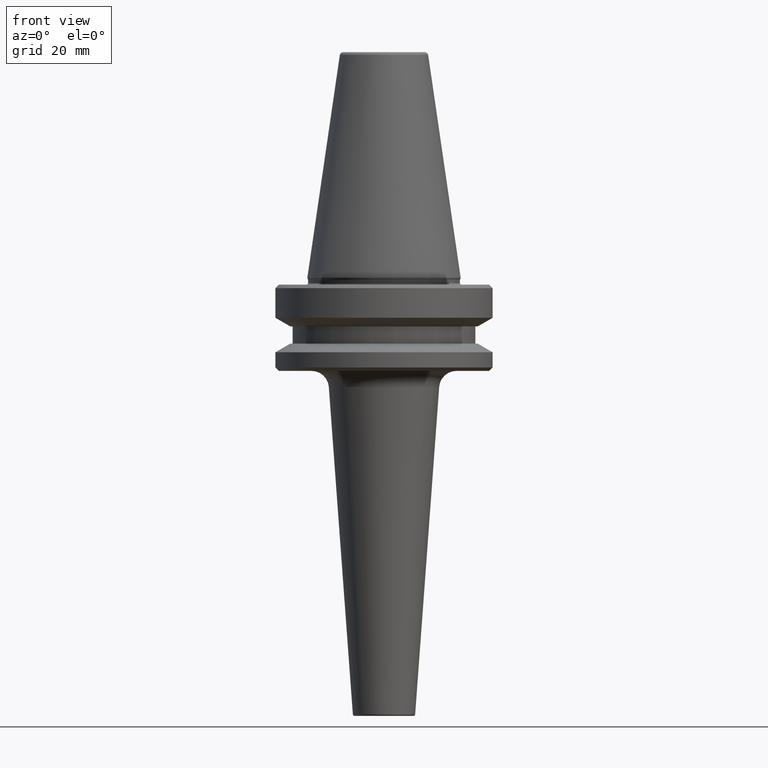
[diagram: clean part render]
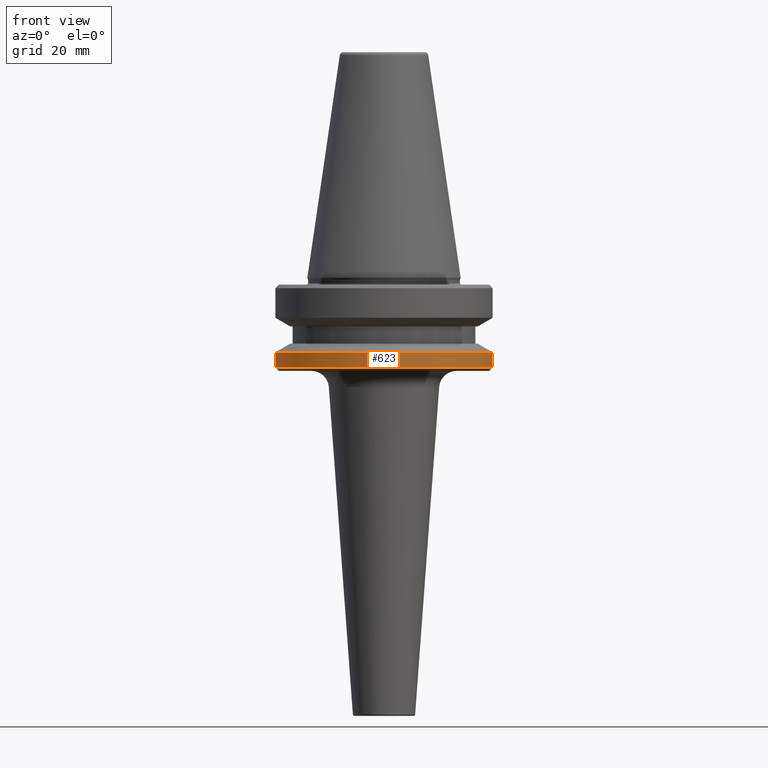
[diagram: same view with one face highlighted and labeled with its STEP entity id]
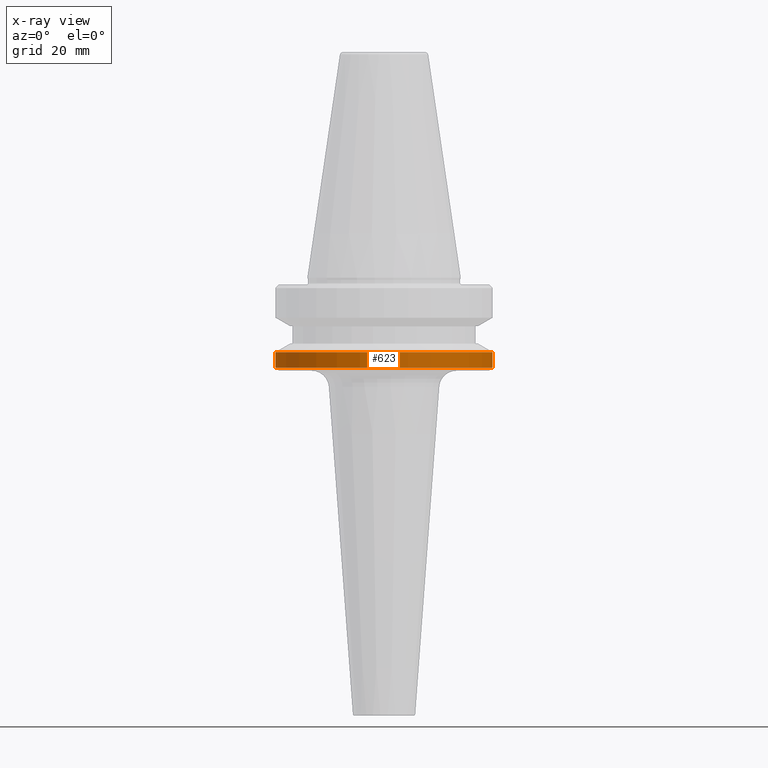
[diagram: x-ray of the same camera — body ghosted, the highlighted face saturated]
A machine part, front view. The second image highlights one B-rep face of the part: STEP entity #623.
The next image is the same camera in x-ray: the body ghosted, the highlighted face saturated — about 0% of this face is hidden behind the body in this view.
In plain terms, the highlighted cylindrical surface (partial cylindrical patch) has radius 31.5 mm, axis along (-0, -0, 1).
Its self-contained STEP definition (entity closure, byte-faithful):
#44 = ORIENTED_EDGE ( 'NONE', *, *, #346, .T. ) ;
#95 = CARTESIAN_POINT ( 'NONE',  ( -31.50000000000008500, 3.857637417314172900E-015, -91.40000000000037500 ) ) ;
#197 = DIRECTION ( 'NONE',  ( -0.0000000000000000000, -0.0000000000000000000, 1.000000000000000000 ) ) ;
#226 = VERTEX_POINT ( 'NONE', #402 ) ;
#233 = VERTEX_POINT ( 'NONE', #95 ) ;
#257 = VERTEX_POINT ( 'NONE', #447 ) ;
#260 = DIRECTION ( 'NONE',  ( -0.0000000000000000000, -0.0000000000000000000, 1.000000000000000000 ) ) ;
#262 = DIRECTION ( 'NONE',  ( -0.0000000000000000000, -0.0000000000000000000, 1.000000000000000000 ) ) ;
#263 = FACE_OUTER_BOUND ( 'NONE', #357, .T. ) ;
#275 = LINE ( 'NONE', #1039, #489 ) ;
#276 = DIRECTION ( 'NONE',  ( 1.000000000000000000, 0.0000000000000000000, 0.0000000000000000000 ) ) ;
#277 = EDGE_CURVE ( 'NONE', #257, #596, #912, .T. ) ;
#281 = DIRECTION ( 'NONE',  ( -0.0000000000000000000, -0.0000000000000000000, 1.000000000000000000 ) ) ;
#293 = CARTESIAN_POINT ( 'NONE',  ( 0.0000000000000000000, 0.0000000000000000000, -87.00014200631733300 ) ) ;
#346 = EDGE_CURVE ( 'NONE', #233, #257, #688, .T. ) ;
#357 = EDGE_LOOP ( 'NONE', ( #394, #44, #920, #1013 ) ) ;
#394 = ORIENTED_EDGE ( 'NONE', *, *, #1048, .F. ) ;
#402 = CARTESIAN_POINT ( 'NONE',  ( -31.50000000000008500, 3.857637417314172900E-015, -87.00014200631733300 ) ) ;
#407 = AXIS2_PLACEMENT_3D ( 'NONE', #488, #197, #915 ) ;
#432 = CARTESIAN_POINT ( 'NONE',  ( 31.50000000000008500, 0.0000000000000000000, 6.357346922996331500 ) ) ;
#442 = CARTESIAN_POINT ( 'NONE',  ( 31.50000000000008500, 0.0000000000000000000, -87.00014200631733300 ) ) ;
#446 = AXIS2_PLACEMENT_3D ( 'NONE', #293, #778, #276 ) ;
#447 = CARTESIAN_POINT ( 'NONE',  ( 31.50000000000008500, 0.0000000000000000000, -91.40000000000037500 ) ) ;
#475 = CARTESIAN_POINT ( 'NONE',  ( 0.0000000000000000000, 0.0000000000000000000, 6.357346922996331500 ) ) ;
#488 = CARTESIAN_POINT ( 'NONE',  ( 0.0000000000000000000, 0.0000000000000000000, -91.40000000000037500 ) ) ;
#489 = VECTOR ( 'NONE', #260, 1000.000000000000000 ) ;
#502 = DIRECTION ( 'NONE',  ( 1.000000000000000000, 0.0000000000000000000, 0.0000000000000000000 ) ) ;
#540 = CIRCLE ( 'NONE', #446, 31.50000000000008500 ) ;
#596 = VERTEX_POINT ( 'NONE', #442 ) ;
#599 = AXIS2_PLACEMENT_3D ( 'NONE', #475, #262, #502 ) ;
#623 = ADVANCED_FACE ( 'NONE', ( #263 ), #852, .T. ) ;
#688 = CIRCLE ( 'NONE', #407, 31.50000000000008500 ) ;
#739 = VECTOR ( 'NONE', #281, 1000.000000000000000 ) ;
#778 = DIRECTION ( 'NONE',  ( -0.0000000000000000000, -0.0000000000000000000, 1.000000000000000000 ) ) ;
#852 = CYLINDRICAL_SURFACE ( 'NONE', #599, 31.50000000000008500 ) ;
#912 = LINE ( 'NONE', #432, #739 ) ;
#915 = DIRECTION ( 'NONE',  ( 1.000000000000000000, 0.0000000000000000000, 0.0000000000000000000 ) ) ;
#920 = ORIENTED_EDGE ( 'NONE', *, *, #277, .T. ) ;
#1008 = EDGE_CURVE ( 'NONE', #226, #596, #540, .T. ) ;
#1013 = ORIENTED_EDGE ( 'NONE', *, *, #1008, .F. ) ;
#1039 = CARTESIAN_POINT ( 'NONE',  ( -31.50000000000008500, 3.857637417314172900E-015, 6.357346922996331500 ) ) ;
#1048 = EDGE_CURVE ( 'NONE', #233, #226, #275, .T. ) ;